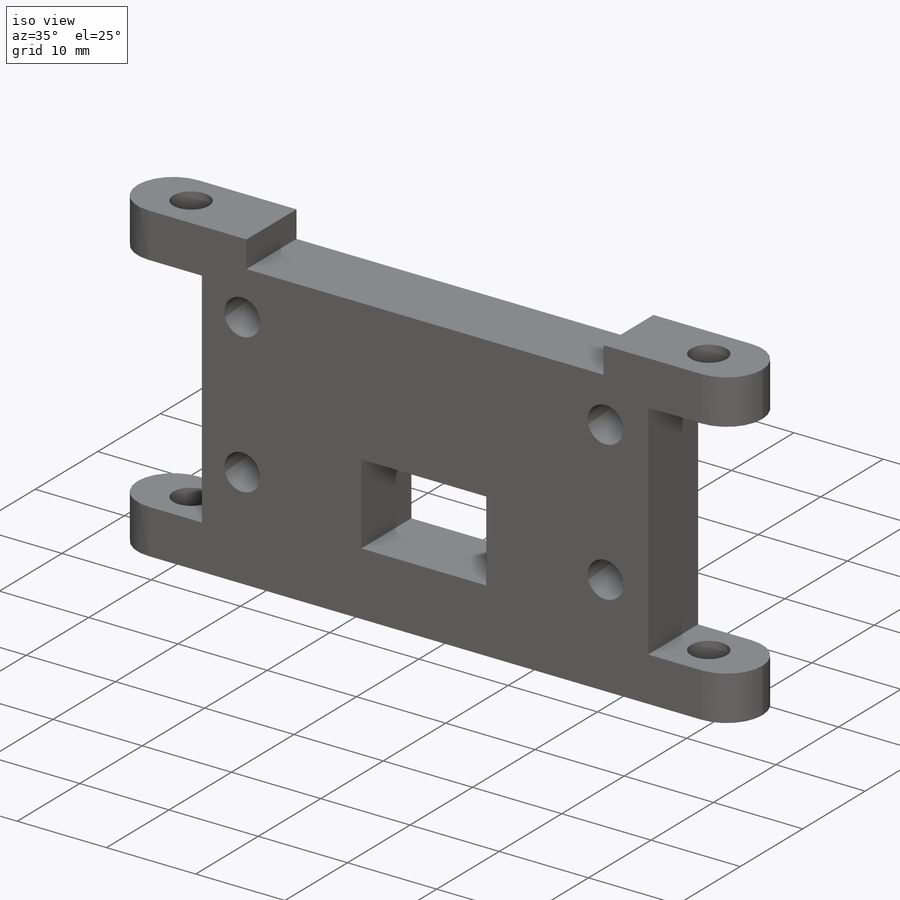
[diagram: iso view]
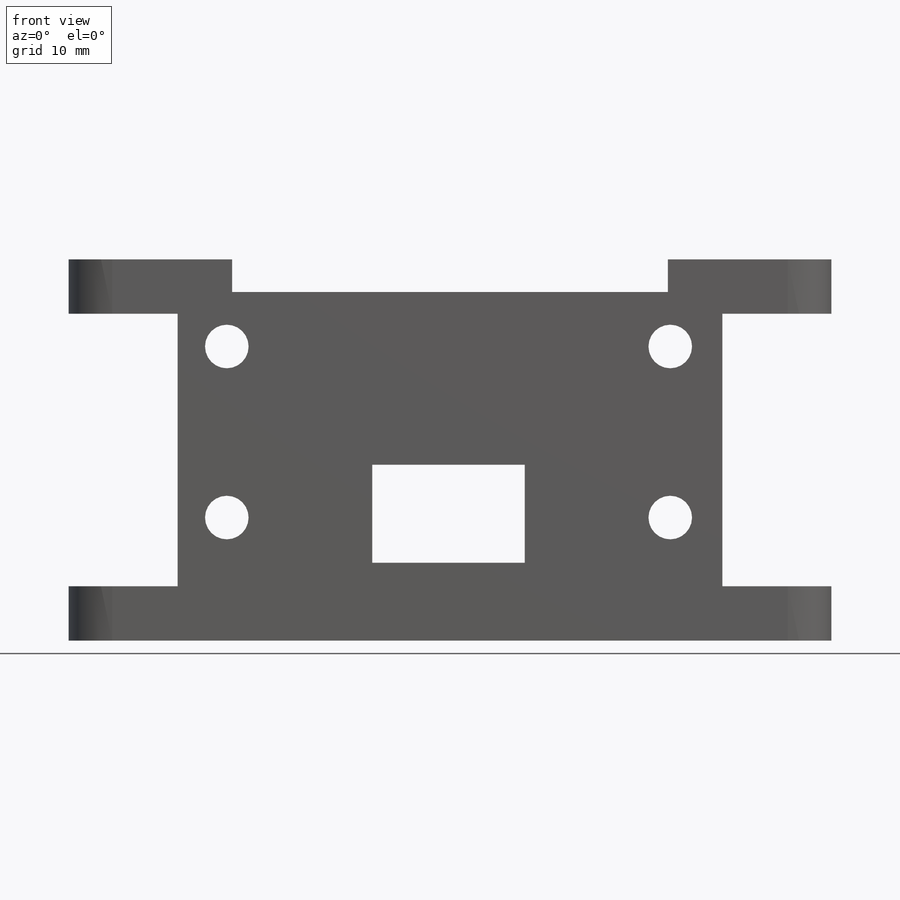
[diagram: front view]
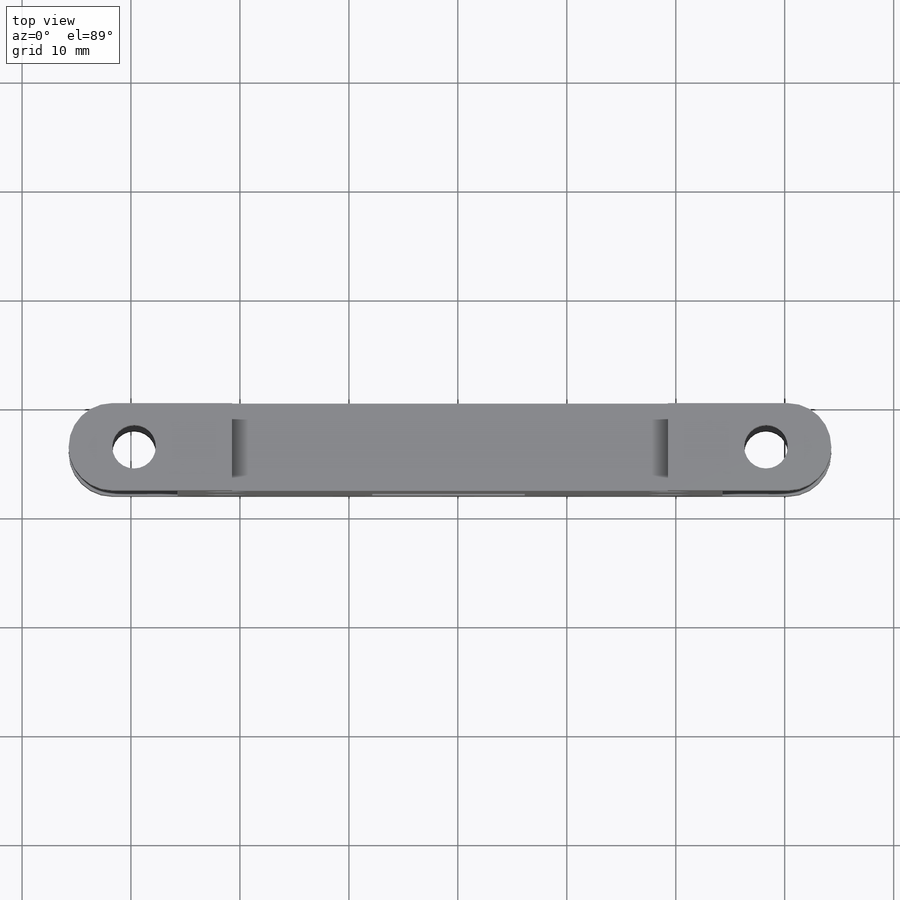
[diagram: top view]
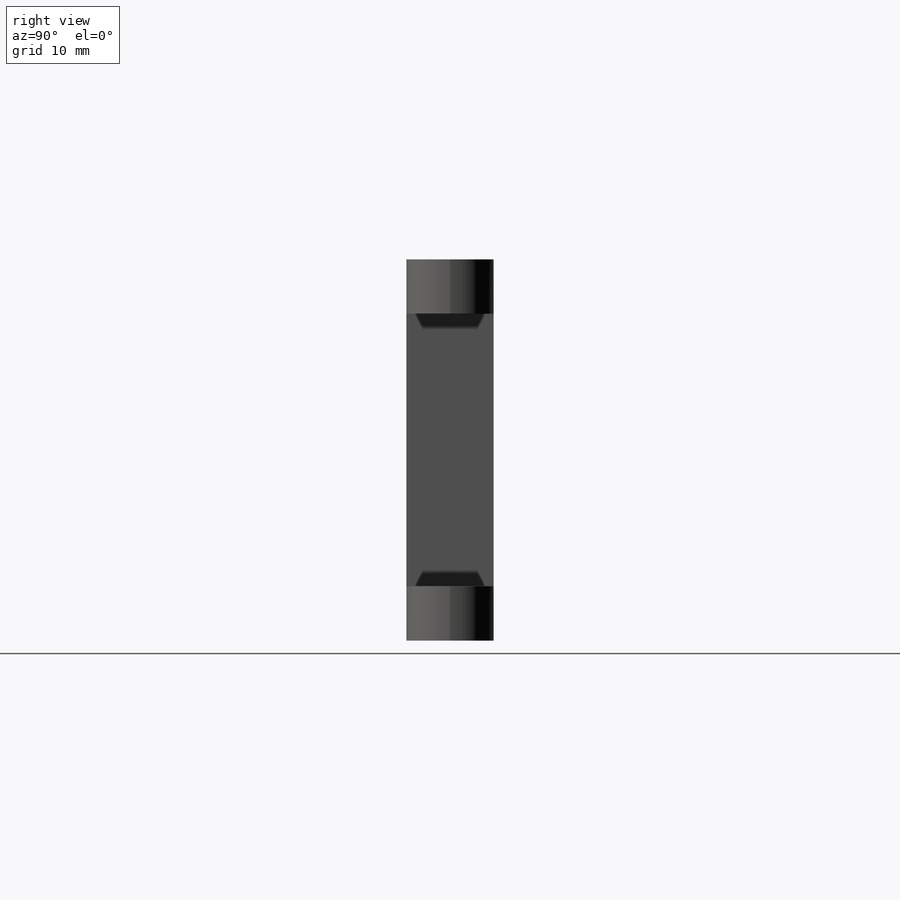
[diagram: right view]
SOLIDWORKS PART (.sldprt)
format: sldprt  version: not decoded by parser v0  size: 266,752 bytes
history: native  units: mm
features: sketch x5, cut_extrude x4, material x1, extrude x1, fillet x1 (+13 scaffold rows collapsed)
feature tree (25):
  scaffold x13  (default folders/planes/origin — collapsed)
  material  "Material <not specified>"
  sketch  "Sketch1"  dims[D1=35.0mm D2=70.0mm]
  extrude  "Boss-Extrude1"  Depth=8mm
  fillet  "Fillet3"  Radius=4mm
  sketch  "Sketch7"  dims[c1.D1=4.0mm c1.D2=4.0mm c1.D4=3.0mm c1.D5=3.0mm c1.D6=3.0mm c1.D3=32.0mm c2.D4=4.0mm c2.D5=6.0mm c2.D6=4.0mm c2.D3=6.0mm]
  cut_extrude  "Cut-Extrude4"  Depth=35mm
  sketch  "Sketch8"  dims[c1.D5=3.0mm c1.D6=3.0mm c1.D7=3.0mm c1.D8=3.0mm c2.D5=4.0mm c2.D6=4.0mm c2.D7=4.0mm c2.D8=4.0mm c2.D9=4.0mm c2.D10=4.0mm c2.D11=4.0mm c2.D12=4.0mm c2.D13=4.0mm c2.D14=4.0mm c2.D15=4.0mm c2.D16=4.0mm c2.D17=4.0mm c2.D1=1.0mm c2.D2=1.0mm c2.D3=1.0mm c2.D4=1.0mm c3.D5=0.0mm c3.D6=0.0mm c3.D7=0.0mm c3.D8=0.0mm c3.D9=15.7mm c3.D10=40.7mm c3.D11=10.515mm c3.D12=8.0mm c3.D13=8.0mm c3.D14=15.7mm c3.D15=40.7mm c3.D16=10.515mm c3.D17=11.3mm]
  cut_extrude  "Cut-Extrude5"  [1 undecoded]
  sketch  "Sketch10"  dims[D1=40.0mm D2=15.0mm]
  cut_extrude  "Cut-Extrude6"  Depth=3mm
  sketch  "Sketch12"  dims[c1.D1=5.0mm c1.D2=5.0mm c1.D3=25.0mm c2.D3=270.0deg c3.D3=10.0mm c3.D4=5.0mm c3.D5=10.0mm c3.D6=5.0mm]
  cut_extrude  "Cut-Extrude7"  [1 undecoded]
decode coverage: 9 of 11 modeling features carry decoded parameters
note: 2 parameter values undecoded
note: suppression state not decoded; provenance and decode notes live in map.json
